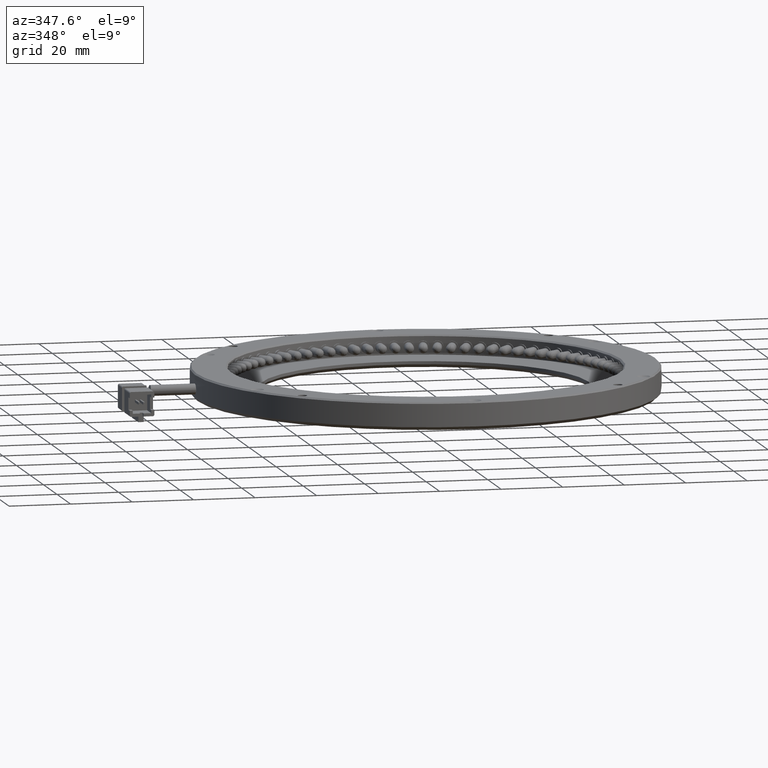
[diagram: clean part render]
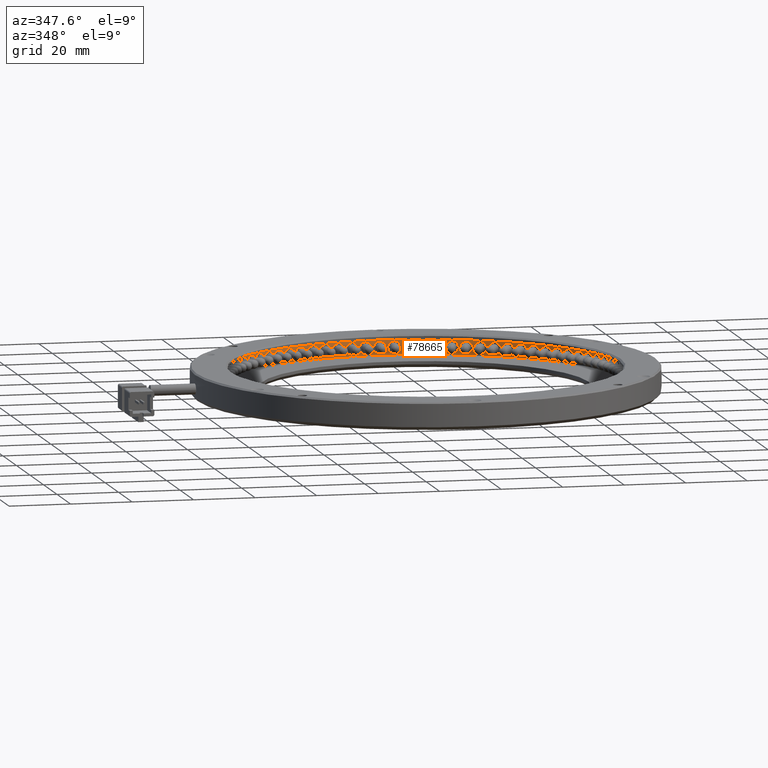
[diagram: same view with one face highlighted and labeled with its STEP entity id]
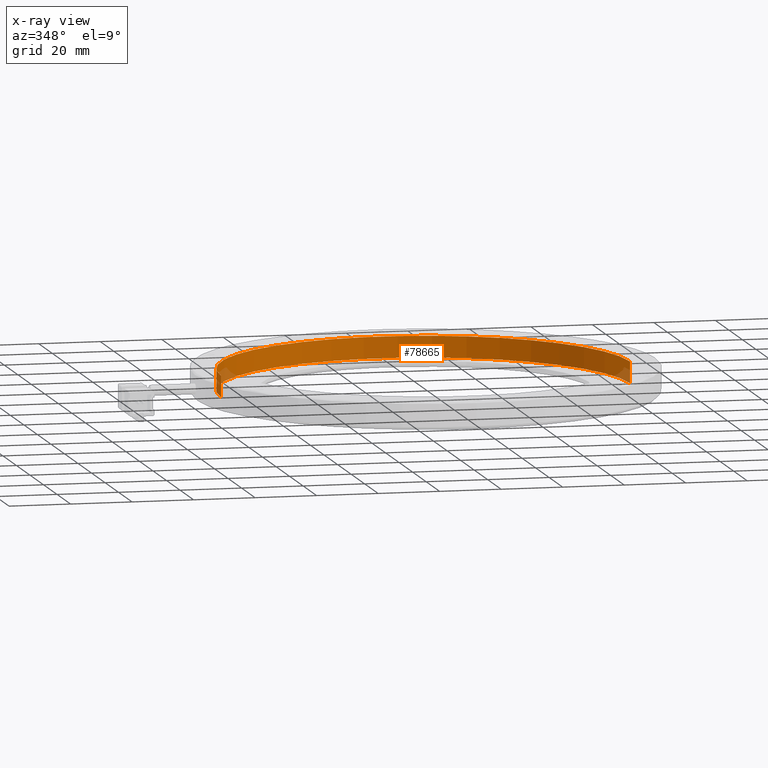
[diagram: x-ray of the same camera — body ghosted, the highlighted face saturated]
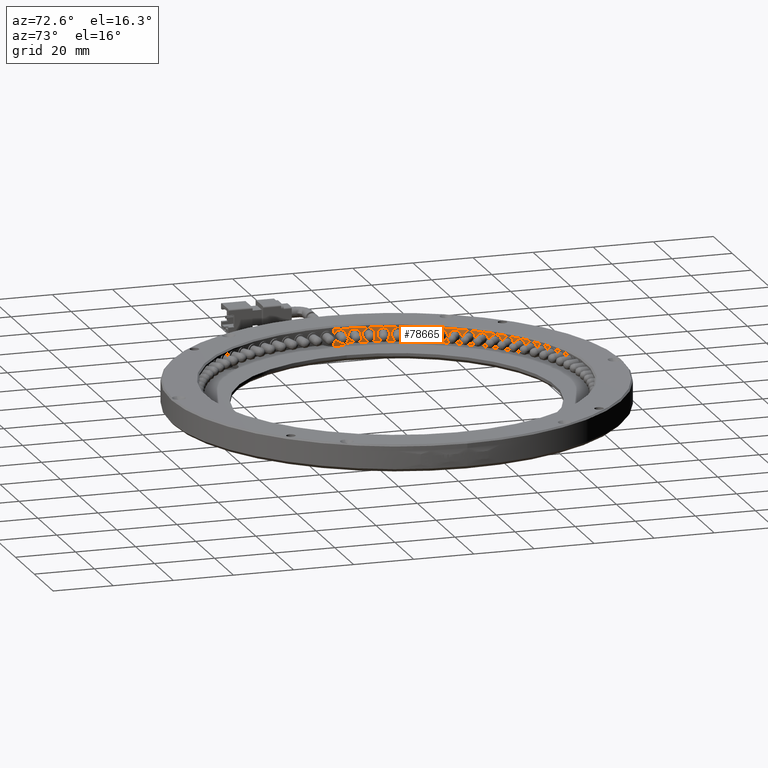
[diagram: same view with one face highlighted and labeled with its STEP entity id]
A machine part, auxiliary view. The second image highlights one B-rep face of the part: STEP entity #78665.
The next image is the same camera in x-ray: the body ghosted, the highlighted face saturated — about 3% of this face is hidden behind the body in this view.
A second angle (auxiliary view) of the same face is appended — the face is thin or edge-on in the first view.
In plain terms, the highlighted cylindrical surface (partial cylindrical patch) has radius 66.5 mm, axis along (-0, -0, -1).
Its self-contained STEP definition (entity closure, byte-faithful):
#808 = VERTEX_POINT ( 'NONE', #47254 ) ;
#9787 = AXIS2_PLACEMENT_3D ( 'NONE', #47616, #17317, #41787 ) ;
#11232 = DIRECTION ( 'NONE',  ( -0.0000000000000000000, -0.0000000000000000000, -1.000000000000000000 ) ) ;
#15205 = VECTOR ( 'NONE', #11232, 1000.000000000000000 ) ;
#17317 = DIRECTION ( 'NONE',  ( -0.0000000000000000000, -0.0000000000000000000, -1.000000000000000000 ) ) ;
#21131 = VERTEX_POINT ( 'NONE', #75469 ) ;
#21631 = VERTEX_POINT ( 'NONE', #72980 ) ;
#25549 = DIRECTION ( 'NONE',  ( -0.0000000000000000000, -0.0000000000000000000, -1.000000000000000000 ) ) ;
#26127 = FACE_OUTER_BOUND ( 'NONE', #43985, .T. ) ;
#28700 = DIRECTION ( 'NONE',  ( -0.0000000000000000000, -0.0000000000000000000, -1.000000000000000000 ) ) ;
#29334 = CARTESIAN_POINT ( 'NONE',  ( -55.67760152284265000, 1.095939086294420100, 4.499999999999938700 ) ) ;
#29525 = ORIENTED_EDGE ( 'NONE', *, *, #57715, .T. ) ;
#31789 = ORIENTED_EDGE ( 'NONE', *, *, #61597, .T. ) ;
#34706 = CYLINDRICAL_SURFACE ( 'NONE', #9787, 66.50000000000000000 ) ;
#41787 = DIRECTION ( 'NONE',  ( -1.000000000000000000, 0.0000000000000000000, 0.0000000000000000000 ) ) ;
#42943 = EDGE_CURVE ( 'NONE', #21131, #808, #68172, .T. ) ;
#43985 = EDGE_LOOP ( 'NONE', ( #77426, #76987, #29525, #31789 ) ) ;
#47254 = CARTESIAN_POINT ( 'NONE',  ( 77.32239847715735000, 1.095939086294428500, -2.500000000000061300 ) ) ;
#47616 = CARTESIAN_POINT ( 'NONE',  ( 10.82239847715735200, 1.095939086294420100, 4.499999999999938700 ) ) ;
#52006 = VECTOR ( 'NONE', #58917, 1000.000000000000000 ) ;
#52059 = VERTEX_POINT ( 'NONE', #78045 ) ;
#52791 = CARTESIAN_POINT ( 'NONE',  ( 77.32239847715735000, 1.095939086294428500, 4.499999999999938700 ) ) ;
#53123 = CIRCLE ( 'NONE', #68906, 66.50000000000000000 ) ;
#56556 = CIRCLE ( 'NONE', #78289, 66.50000000000000000 ) ;
#57715 = EDGE_CURVE ( 'NONE', #21631, #52059, #63717, .T. ) ;
#58917 = DIRECTION ( 'NONE',  ( -0.0000000000000000000, -0.0000000000000000000, -1.000000000000000000 ) ) ;
#61597 = EDGE_CURVE ( 'NONE', #52059, #808, #53123, .T. ) ;
#61971 = CARTESIAN_POINT ( 'NONE',  ( 10.82239847715735200, 1.095939086294420100, -2.500000000000061300 ) ) ;
#62893 = EDGE_CURVE ( 'NONE', #21631, #21131, #56556, .T. ) ;
#63717 = LINE ( 'NONE', #29334, #15205 ) ;
#65040 = CARTESIAN_POINT ( 'NONE',  ( 10.82239847715735200, 1.095939086294420100, 4.499999999999938700 ) ) ;
#68050 = DIRECTION ( 'NONE',  ( -1.000000000000000000, 0.0000000000000000000, 0.0000000000000000000 ) ) ;
#68172 = LINE ( 'NONE', #52791, #52006 ) ;
#68906 = AXIS2_PLACEMENT_3D ( 'NONE', #61971, #25549, #68050 ) ;
#71149 = DIRECTION ( 'NONE',  ( -1.000000000000000000, 0.0000000000000000000, 0.0000000000000000000 ) ) ;
#72980 = CARTESIAN_POINT ( 'NONE',  ( -55.67760152284265000, 1.095939086294420100, 4.499999999999938700 ) ) ;
#75469 = CARTESIAN_POINT ( 'NONE',  ( 77.32239847715735000, 1.095939086294428500, 4.499999999999938700 ) ) ;
#76987 = ORIENTED_EDGE ( 'NONE', *, *, #62893, .F. ) ;
#77426 = ORIENTED_EDGE ( 'NONE', *, *, #42943, .F. ) ;
#78045 = CARTESIAN_POINT ( 'NONE',  ( -55.67760152284265000, 1.095939086294420100, -2.500000000000061300 ) ) ;
#78289 = AXIS2_PLACEMENT_3D ( 'NONE', #65040, #28700, #71149 ) ;
#78665 = ADVANCED_FACE ( 'NONE', ( #26127 ), #34706, .F. ) ;